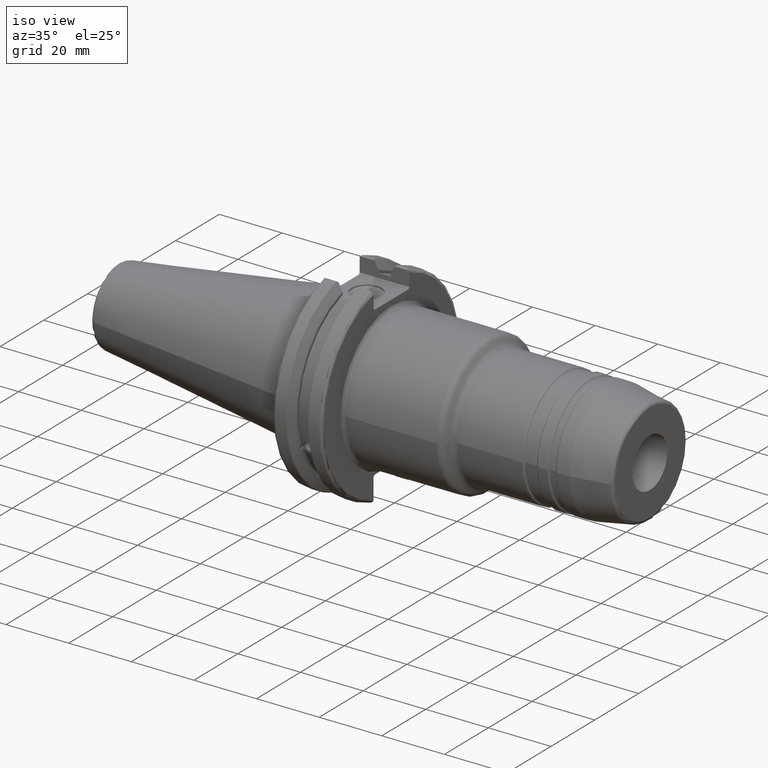
[diagram: clean part render]
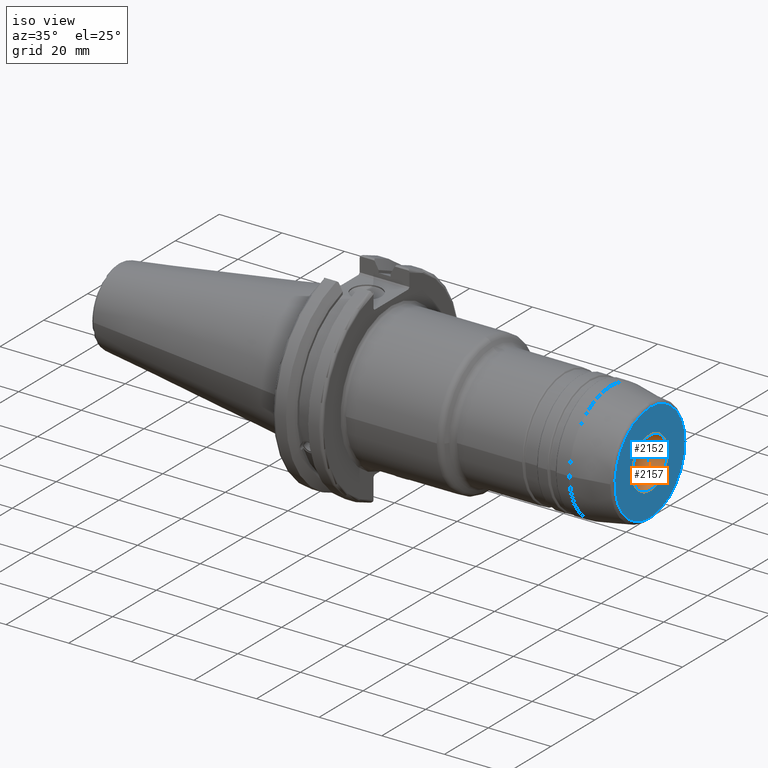
[diagram: same view with the hole feature highlighted: cylindrical wall and planar end face, labeled with their STEP entity ids]
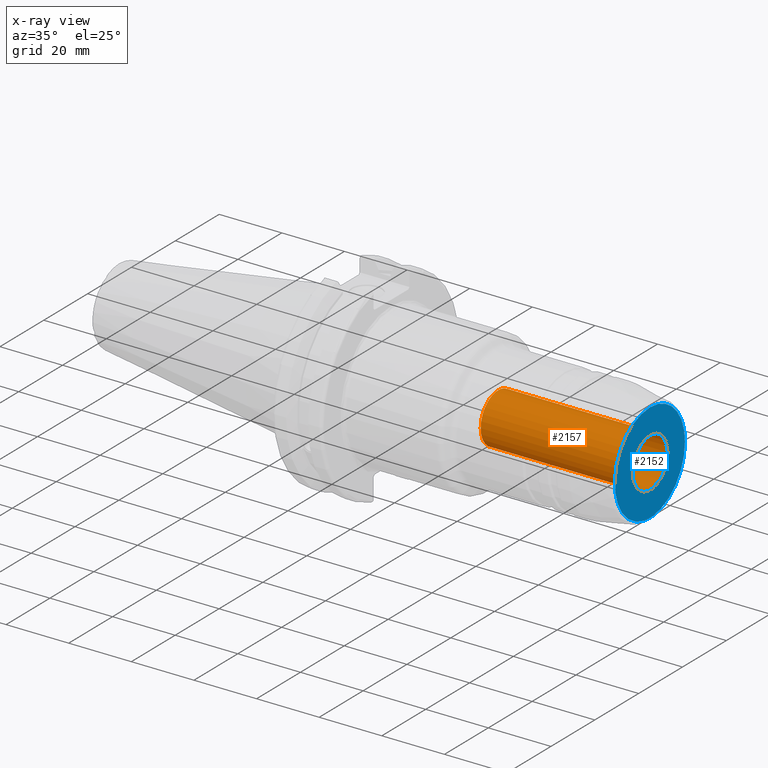
[diagram: x-ray of the same camera — body ghosted, the hole faces saturated]
A machine part, iso view. The highlighted faces form one hole feature of diameter 15.875 mm: the cylindrical wall (entity #2157, orange) and its adjacent planar end face (entity #2152, blue) — they share a circular edge in the B-rep.
The next image is the same camera in x-ray (body ghosted, the hole faces saturated) — the bore reads through the body.
Wall:
#199=FACE_OUTER_BOUND('',#311,.T.);
#311=EDGE_LOOP('',(#1615,#1616,#1617,#1618,#1619,#1620));
#415=LINE('',#3600,#520);
#520=VECTOR('',#2834,7.9375);
#700=CIRCLE('',#2370,7.9375);
#701=CIRCLE('',#2371,7.9375);
#709=CIRCLE('',#2384,7.9375);
#710=CIRCLE('',#2385,7.9375);
#873=VERTEX_POINT('',#3563);
#874=VERTEX_POINT('',#3564);
#882=VERTEX_POINT('',#3599);
#883=VERTEX_POINT('',#3601);
#1147=EDGE_CURVE('',#873,#874,#700,.T.);
#1148=EDGE_CURVE('',#874,#873,#701,.T.);
#1159=EDGE_CURVE('',#874,#882,#415,.T.);
#1160=EDGE_CURVE('',#883,#882,#709,.T.);
#1161=EDGE_CURVE('',#882,#883,#710,.T.);
#1615=ORIENTED_EDGE('',*,*,#1147,.T.);
#1616=ORIENTED_EDGE('',*,*,#1159,.T.);
#1617=ORIENTED_EDGE('',*,*,#1160,.F.);
#1618=ORIENTED_EDGE('',*,*,#1161,.F.);
#1619=ORIENTED_EDGE('',*,*,#1159,.F.);
#1620=ORIENTED_EDGE('',*,*,#1148,.T.);
#2102=CYLINDRICAL_SURFACE('',#2383,7.9375);
#2157=ADVANCED_FACE('',(#199),#2102,.F.);
#2370=AXIS2_PLACEMENT_3D('',#3565,#2805,#2806);
#2371=AXIS2_PLACEMENT_3D('',#3566,#2807,#2808);
#2383=AXIS2_PLACEMENT_3D('',#3598,#2832,#2833);
#2384=AXIS2_PLACEMENT_3D('',#3602,#2835,#2836);
#2385=AXIS2_PLACEMENT_3D('',#3603,#2837,#2838);
#2805=DIRECTION('center_axis',(1.,0.,0.));
#2806=DIRECTION('ref_axis',(0.,0.,-1.));
#2807=DIRECTION('center_axis',(1.,0.,0.));
#2808=DIRECTION('ref_axis',(0.,0.,-1.));
#2832=DIRECTION('center_axis',(1.,0.,0.));
#2833=DIRECTION('ref_axis',(0.,1.,0.));
#2834=DIRECTION('',(-1.,0.,0.));
#2835=DIRECTION('center_axis',(1.,0.,0.));
#2836=DIRECTION('ref_axis',(0.,0.,-1.));
#2837=DIRECTION('center_axis',(1.,0.,0.));
#2838=DIRECTION('ref_axis',(0.,0.,-1.));
#3563=CARTESIAN_POINT('',(101.6,7.9375,0.));
#3564=CARTESIAN_POINT('',(101.6,-7.9375,-9.72063396823211E-16));
#3565=CARTESIAN_POINT('Origin',(101.6,0.,0.));
#3566=CARTESIAN_POINT('Origin',(101.6,0.,0.));
#3598=CARTESIAN_POINT('Origin',(77.35,0.,0.));
#3599=CARTESIAN_POINT('',(53.1,-7.9375,-9.72063396823211E-16));
#3600=CARTESIAN_POINT('',(77.35,-7.9375,-9.72063396823211E-16));
#3601=CARTESIAN_POINT('',(53.1,7.9375,0.));
#3602=CARTESIAN_POINT('Origin',(53.1,0.,0.));
#3603=CARTESIAN_POINT('Origin',(53.1,0.,0.));
End face:
#49=PLANE('',#2369);
#125=FACE_BOUND('',#305,.T.);
#194=FACE_OUTER_BOUND('',#304,.T.);
#304=EDGE_LOOP('',(#1585,#1586));
#305=EDGE_LOOP('',(#1587,#1588));
#691=CIRCLE('',#2359,15.9609003688227);
#696=CIRCLE('',#2364,15.9609003688227);
#700=CIRCLE('',#2370,7.9375);
#701=CIRCLE('',#2371,7.9375);
#865=VERTEX_POINT('',#3543);
#866=VERTEX_POINT('',#3544);
#873=VERTEX_POINT('',#3563);
#874=VERTEX_POINT('',#3564);
#1137=EDGE_CURVE('',#865,#866,#691,.T.);
#1142=EDGE_CURVE('',#866,#865,#696,.T.);
#1147=EDGE_CURVE('',#873,#874,#700,.T.);
#1148=EDGE_CURVE('',#874,#873,#701,.T.);
#1585=ORIENTED_EDGE('',*,*,#1137,.F.);
#1586=ORIENTED_EDGE('',*,*,#1142,.F.);
#1587=ORIENTED_EDGE('',*,*,#1147,.F.);
#1588=ORIENTED_EDGE('',*,*,#1148,.F.);
#2152=ADVANCED_FACE('',(#194,#125),#49,.T.);
#2359=AXIS2_PLACEMENT_3D('',#3545,#2782,#2783);
#2364=AXIS2_PLACEMENT_3D('',#3553,#2792,#2793);
#2369=AXIS2_PLACEMENT_3D('',#3562,#2803,#2804);
#2370=AXIS2_PLACEMENT_3D('',#3565,#2805,#2806);
#2371=AXIS2_PLACEMENT_3D('',#3566,#2807,#2808);
#2782=DIRECTION('center_axis',(-1.,0.,0.));
#2783=DIRECTION('ref_axis',(0.,-1.,1.83697019872103E-16));
#2792=DIRECTION('center_axis',(-1.,0.,0.));
#2793=DIRECTION('ref_axis',(0.,-1.,1.83697019872103E-16));
#2803=DIRECTION('center_axis',(1.,0.,0.));
#2804=DIRECTION('ref_axis',(0.,0.,-1.));
#2805=DIRECTION('center_axis',(1.,0.,0.));
#2806=DIRECTION('ref_axis',(0.,0.,-1.));
#2807=DIRECTION('center_axis',(1.,0.,0.));
#2808=DIRECTION('ref_axis',(0.,0.,-1.));
#3543=CARTESIAN_POINT('',(101.6,15.9609003688227,-4.88661638704714E-15));
#3544=CARTESIAN_POINT('',(101.6,-1.95464655481886E-15,15.9609003688227));
#3545=CARTESIAN_POINT('Origin',(101.6,0.,0.));
#3553=CARTESIAN_POINT('Origin',(101.6,0.,0.));
#3562=CARTESIAN_POINT('Origin',(101.6,7.9375,0.));
#3563=CARTESIAN_POINT('',(101.6,7.9375,0.));
#3564=CARTESIAN_POINT('',(101.6,-7.9375,-9.72063396823211E-16));
#3565=CARTESIAN_POINT('Origin',(101.6,0.,0.));
#3566=CARTESIAN_POINT('Origin',(101.6,0.,0.));